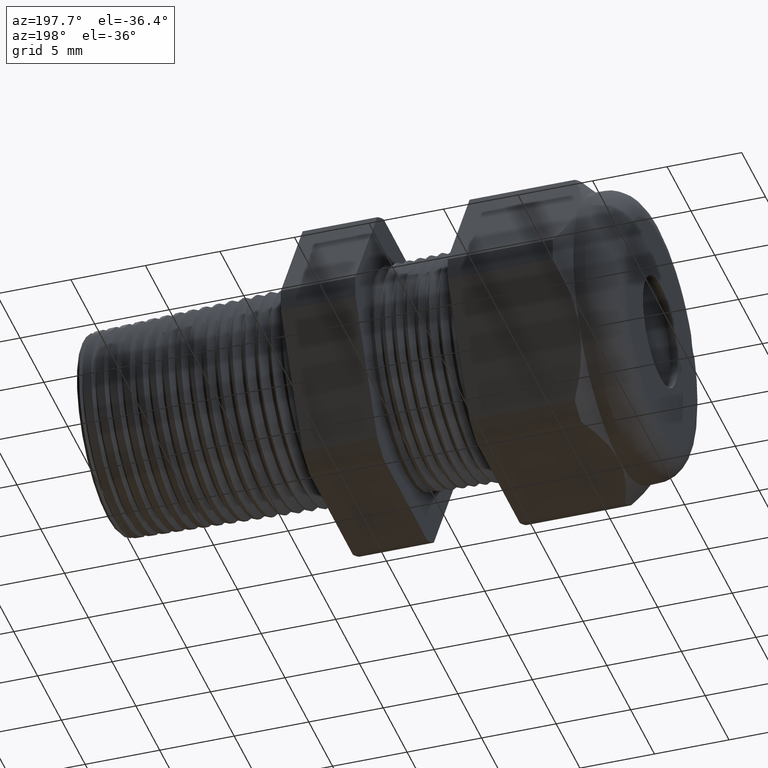
[diagram: clean part render]
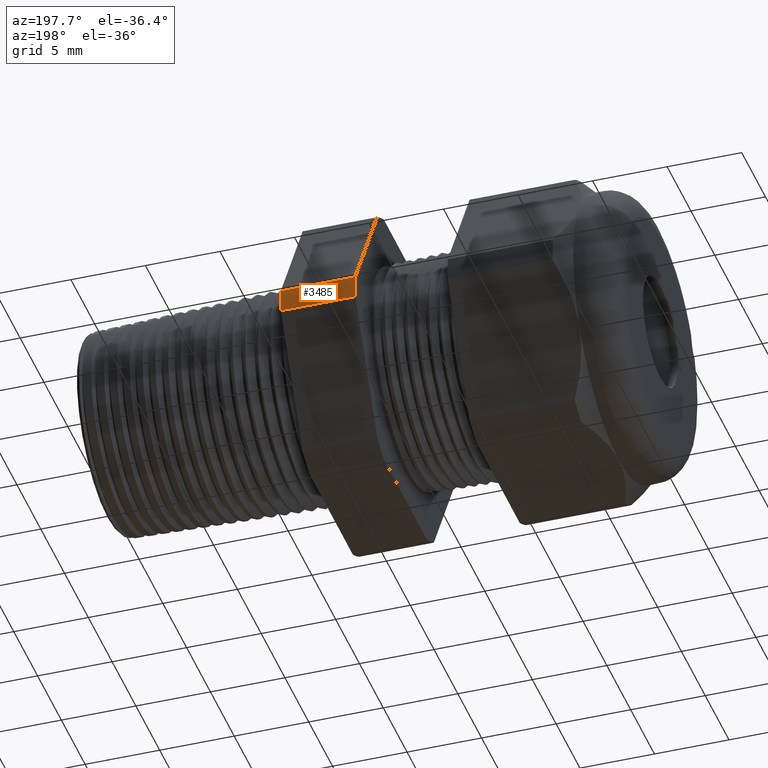
[diagram: same view with one face highlighted and labeled with its STEP entity id]
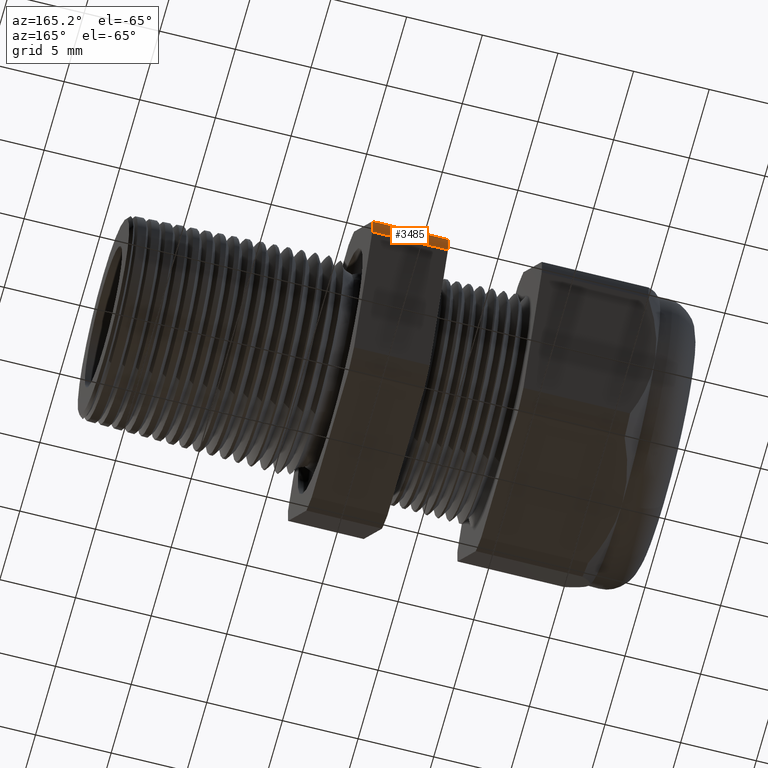
[diagram: same view with one face highlighted and labeled with its STEP entity id]
A machine part, auxiliary view. The second image highlights one B-rep face of the part: STEP entity #3485.
A second angle (auxiliary view) of the same face is appended — the face is thin or edge-on in the first view.
In plain terms, the highlighted cylindrical surface (partial cylindrical patch) has radius 10.5727 mm, axis along (-1, 0, 0).
Its self-contained STEP definition (entity closure, byte-faithful):
#131 = CARTESIAN_POINT ( 'NONE',  ( -0.3100000000000000000, 0.4150909474475088000, 0.03104138925901233200 ) ) ;
#132 = DIRECTION ( 'NONE',  ( 0.0000000000000000000, 0.0000000000000000000, -1.000000000000000000 ) ) ;
#133 = DIRECTION ( 'NONE',  ( 1.000000000000000000, 0.0000000000000000000, 0.0000000000000000000 ) ) ;
#134 = CARTESIAN_POINT ( 'NONE',  ( -0.3100000000000000000, 0.0000000000000000000, 0.0000000000000000000 ) ) ;
#135 = AXIS2_PLACEMENT_3D ( 'NONE', #134, #133, #132 ) ;
#136 = CIRCLE ( 'NONE', #135, 0.4162500000000000100 ) ;
#137 = CARTESIAN_POINT ( 'NONE',  ( -0.3100000000000000000, 0.4150909474475088000, -0.03104138925901222000 ) ) ;
#372 = DIRECTION ( 'NONE',  ( 0.0000000000000000000, 0.0000000000000000000, 1.000000000000000000 ) ) ;
#373 = DIRECTION ( 'NONE',  ( -1.000000000000000000, 0.0000000000000000000, 0.0000000000000000000 ) ) ;
#374 = CARTESIAN_POINT ( 'NONE',  ( 0.2800000000000000300, 0.0000000000000000000, 0.0000000000000000000 ) ) ;
#375 = AXIS2_PLACEMENT_3D ( 'NONE', #374, #373, #372 ) ;
#377 = CYLINDRICAL_SURFACE ( 'NONE', #375, 0.4162500000000000100 ) ;
#378 = FACE_OUTER_BOUND ( 'NONE', #3486, .T. ) ;
#383 = CARTESIAN_POINT ( 'NONE',  ( -0.5068503937007874400, 0.4150909474475088000, 0.03104138925901233200 ) ) ;
#384 = DIRECTION ( 'NONE',  ( -1.000000000000000000, 0.0000000000000000000, 0.0000000000000000000 ) ) ;
#385 = VECTOR ( 'NONE', #384, 39.37007874015748100 ) ;
#386 = CARTESIAN_POINT ( 'NONE',  ( 0.2800000000000000300, 0.4150909474475088000, 0.03104138925901233200 ) ) ;
#387 = LINE ( 'NONE', #386, #385 ) ;
#2482 = DIRECTION ( 'NONE',  ( 0.0000000000000000000, 0.0000000000000000000, 1.000000000000000000 ) ) ;
#2483 = DIRECTION ( 'NONE',  ( -1.000000000000000000, 0.0000000000000000000, 0.0000000000000000000 ) ) ;
#2484 = CARTESIAN_POINT ( 'NONE',  ( -0.5068503937007874400, 0.0000000000000000000, 0.0000000000000000000 ) ) ;
#2485 = AXIS2_PLACEMENT_3D ( 'NONE', #2484, #2483, #2482 ) ;
#2490 = CIRCLE ( 'NONE', #2485, 0.4162500000000000100 ) ;
#3117 = VERTEX_POINT ( 'NONE', #4975 ) ;
#3140 = EDGE_CURVE ( 'NONE', #3347, #3117, #5005, .T. ) ;
#3347 = VERTEX_POINT ( 'NONE', #137 ) ;
#3349 = EDGE_CURVE ( 'NONE', #3347, #3350, #136, .T. ) ;
#3350 = VERTEX_POINT ( 'NONE', #131 ) ;
#3481 = EDGE_CURVE ( 'NONE', #3350, #3482, #387, .T. ) ;
#3482 = VERTEX_POINT ( 'NONE', #383 ) ;
#3485 = ADVANCED_FACE ( 'NONE', ( #378 ), #377, .T. ) ;
#3486 = EDGE_LOOP ( 'NONE', ( #3487, #3488, #3489, #4566 ) ) ;
#3487 = ORIENTED_EDGE ( 'NONE', *, *, #3481, .F. ) ;
#3488 = ORIENTED_EDGE ( 'NONE', *, *, #3349, .F. ) ;
#3489 = ORIENTED_EDGE ( 'NONE', *, *, #3140, .T. ) ;
#4566 = ORIENTED_EDGE ( 'NONE', *, *, #4567, .F. ) ;
#4567 = EDGE_CURVE ( 'NONE', #3482, #3117, #2490, .T. ) ;
#4975 = CARTESIAN_POINT ( 'NONE',  ( -0.5068503937007874400, 0.4150909474475088000, -0.03104138925901223100 ) ) ;
#5002 = DIRECTION ( 'NONE',  ( -1.000000000000000000, 0.0000000000000000000, 0.0000000000000000000 ) ) ;
#5003 = VECTOR ( 'NONE', #5002, 39.37007874015748100 ) ;
#5004 = CARTESIAN_POINT ( 'NONE',  ( 0.2800000000000000300, 0.4150909474475088000, -0.03104138925901223100 ) ) ;
#5005 = LINE ( 'NONE', #5004, #5003 ) ;